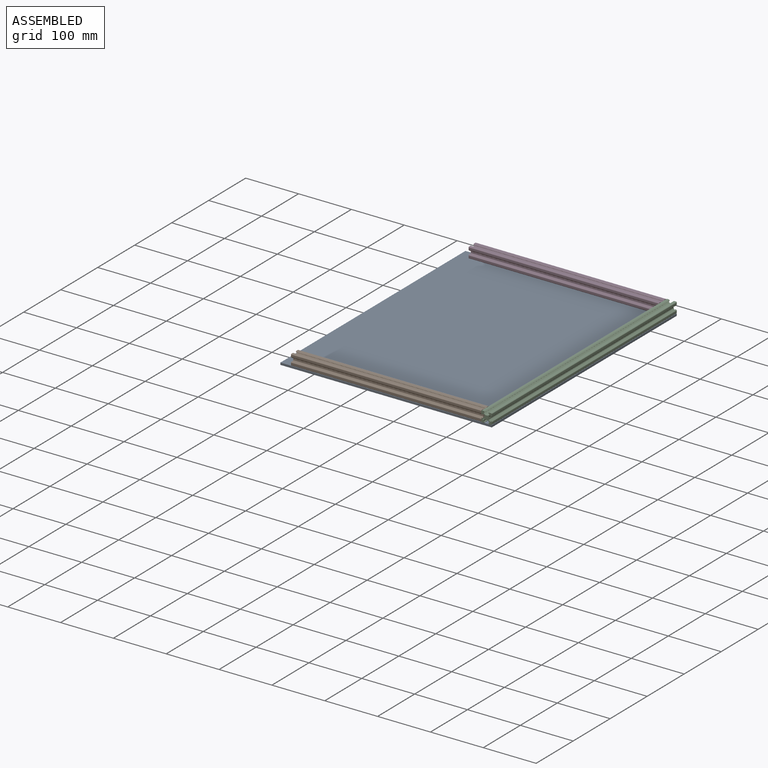
[diagram: assembled view]
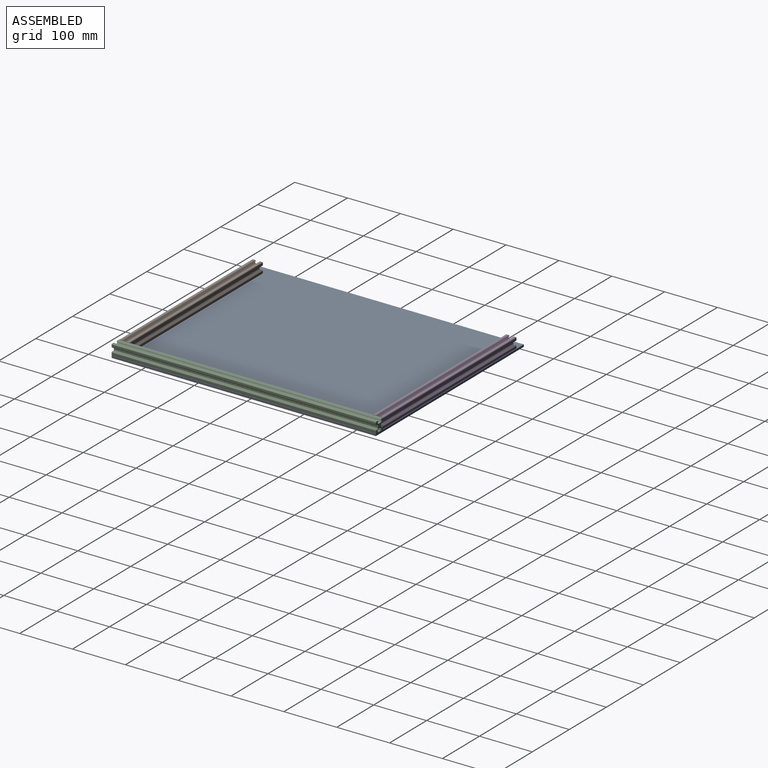
[diagram: assembled view, second angle]
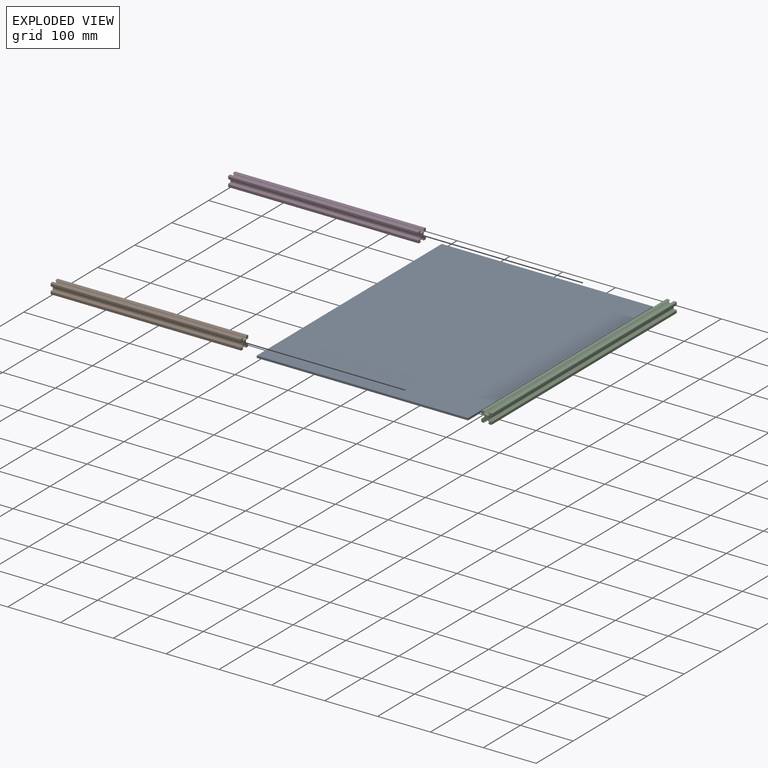
[diagram: exploded view]
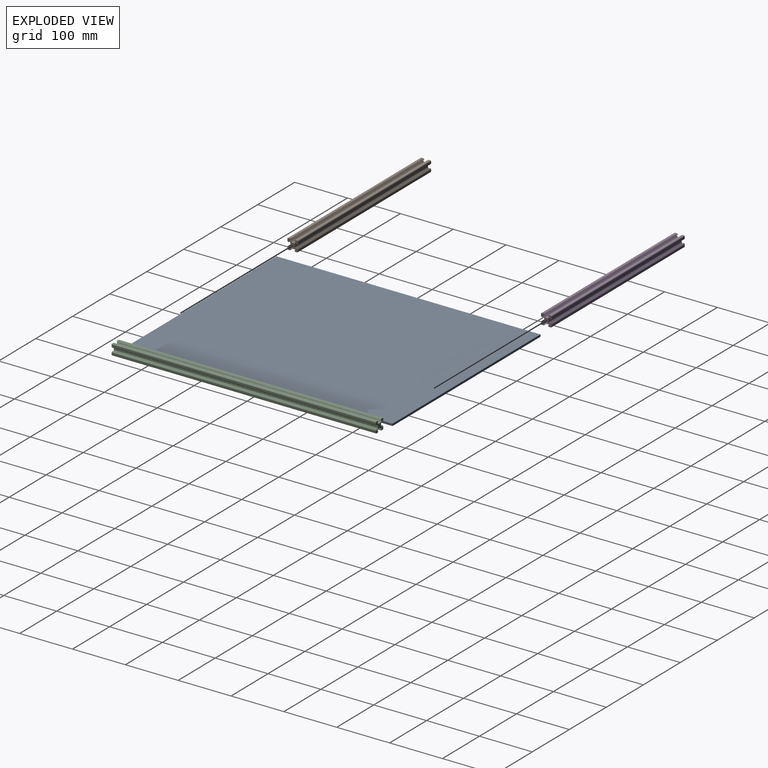
[diagram: exploded view, second angle]
ASSEMBLY  parts=4 mates=2
PART A: 6 faces, bbox 400x500x4 mm
  f0: plane 500x4mm, normal (-1,0,0), area 2000mm2, adj f1,f3,f4,f5
  f1: plane 400x4mm, normal (0,-1,0), area 1600mm2, adj f0,f2,f4,f5
  f2: plane 500x4mm, normal (1,0,0), area 2000mm2, adj f1,f3,f4,f5
  f3: plane 400x4mm, normal (0,1,0), area 1600mm2, adj f0,f2,f4,f5
  f4: plane 500x400mm, normal (0,0,1), area 200000mm2, adj f0,f1,f2,f3
  f5: plane 500x400mm, normal (0,0,-1), area 200000mm2, adj f0,f1,f2,f3
PART B: 110 faces, bbox 360x20x20 mm
  f0: plane 360x3.67mm, normal (0,-1,0), area 1321.2mm2, adj f1,f107,f108,f109
  f1: extruded ~360x0.18mm, area 70.6mm2, adj f0,f2,f108,f109
  f2: plane 360x1.5mm, normal (0,-0.71,-0.71), area 763.7mm2, adj f1,f3,f108,f109
  f3: extruded ~360x0.43mm, area 212mm2, adj f2,f4,f108,f109
  f4: plane 360x1.77mm, normal (0,1,0), area 637.3mm2, adj f3,f5,f108,f109
  f5: extruded ~360x0.2mm, area 113mm2, adj f4,f6,f108,f109
  f6: plane 360x0.81mm, normal (0,0,-1), area 292.7mm2, adj f5,f7,f108,f109
  f7: extruded ~360x0.71mm, area 282.7mm2, adj f6,f8,f108,f109
  f8: plane 360x1.69mm, normal (0,-0.71,-0.71), area 862.5mm2, adj f7,f9,f108,f109
  f9: extruded ~360x1.41mm, area 565.4mm2, adj f8,f10,f108,f109
  f10: plane 360x1.56mm, normal (0,-1,0), area 562mm2, adj f9,f11,f108,f109
  f11: extruded ~360x0.16mm, area 60.7mm2, adj f10,f12,f108,f109
  f12: plane 360x0.18mm, normal (0,-0.78,-0.62), area 83.7mm2, adj f11,f13,f108,f109
  f13: plane 360x0.18mm, normal (0,-0.78,0.62), area 83.7mm2, adj f12,f14,f108,f109
  f14: extruded ~360x0.16mm, area 60.7mm2, adj f13,f15,f108,f109
  f15: plane 360x1.56mm, normal (0,-1,0), area 562mm2, adj f14,f16,f108,f109
  f16: extruded ~360x1.41mm, area 565.4mm2, adj f15,f17,f108,f109
  f17: plane 360x1.69mm, normal (0,-0.71,0.71), area 862.5mm2, adj f16,f18,f108,f109
  f18: extruded ~360x0.71mm, area 282.7mm2, adj f17,f19,f108,f109
  f19: plane 360x0.81mm, normal (0,0,1), area 292.7mm2, adj f18,f20,f108,f109
  f20: extruded ~360x0.2mm, area 113mm2, adj f19,f21,f108,f109
  f21: plane 360x1.77mm, normal (0,1,0), area 637.2mm2, adj f20,f22,f108,f109
  f22: extruded ~360x0.43mm, area 212mm2, adj f21,f23,f108,f109
  f23: plane 360x1.5mm, normal (0,-0.71,0.71), area 763.7mm2, adj f22,f24,f108,f109
  f24: extruded ~360x0.18mm, area 70.7mm2, adj f23,f25,f108,f109
  f25: plane 360x3.67mm, normal (0,-1,0), area 1321.2mm2, adj f24,f26,f108,f109
  f26: extruded ~360x1.5mm, area 848.3mm2, adj f25,f27,f108,f109
  f27: plane 360x3.67mm, normal (0,0,-1), area 1321.2mm2, adj f26,f28,f108,f109
  f28: extruded ~360x0.18mm, area 70.6mm2, adj f27,f29,f108,f109
  f29: plane 360x1.5mm, normal (0,0.71,-0.71), area 763.7mm2, adj f28,f30,f108,f109
  f30: extruded ~360x0.43mm, area 212mm2, adj f29,f31,f108,f109
  f31: plane 360x1.77mm, normal (0,0,1), area 637.3mm2, adj f30,f32,f108,f109
  f32: extruded ~360x0.2mm, area 113mm2, adj f31,f33,f108,f109
  f33: plane 360x0.81mm, normal (0,1,0), area 292.7mm2, adj f32,f34,f108,f109
  f34: extruded ~360x0.71mm, area 282.7mm2, adj f33,f35,f108,f109
  f35: plane 360x1.69mm, normal (0,0.71,-0.71), area 862.5mm2, adj f34,f36,f108,f109
  f36: extruded ~360x1.41mm, area 565.4mm2, adj f35,f37,f108,f109
  f37: plane 360x1.56mm, normal (0,0,-1), area 562mm2, adj f36,f38,f108,f109
  f38: extruded ~360x0.16mm, area 60.7mm2, adj f37,f39,f108,f109
  f39: plane 360x0.18mm, normal (0,0.62,-0.78), area 83.7mm2, adj f38,f40,f108,f109
  f40: plane 360x0.18mm, normal (0,-0.62,-0.78), area 83.7mm2, adj f39,f41,f108,f109
  f41: extruded ~360x0.16mm, area 60.7mm2, adj f40,f42,f108,f109
  f42: plane 360x1.56mm, normal (0,0,-1), area 562mm2, adj f41,f43,f108,f109
  f43: extruded ~360x1.41mm, area 565.4mm2, adj f42,f44,f108,f109
  f44: plane 360x1.69mm, normal (0,-0.71,-0.71), area 862.5mm2, adj f43,f45,f108,f109
  f45: extruded ~360x0.71mm, area 282.7mm2, adj f44,f46,f108,f109
  f46: plane 360x0.81mm, normal (0,-1,0), area 292.7mm2, adj f45,f47,f108,f109
  f47: extruded ~360x0.2mm, area 113mm2, adj f46,f48,f108,f109
  f48: plane 360x1.77mm, normal (0,0,1), area 637.2mm2, adj f47,f49,f108,f109
  f49: extruded ~360x0.43mm, area 212.1mm2, adj f48,f50,f108,f109
  f50: plane 360x1.5mm, normal (0,-0.71,-0.71), area 763.7mm2, adj f49,f51,f108,f109
  f51: extruded ~360x0.18mm, area 70.7mm2, adj f50,f52,f108,f109
  f52: plane 360x3.67mm, normal (0,0,-1), area 1321.2mm2, adj f51,f53,f108,f109
  f53: extruded ~360x1.5mm, area 848.3mm2, adj f52,f54,f108,f109
  f54: plane 360x3.67mm, normal (0,1,0), area 1321.2mm2, adj f53,f55,f108,f109
  f55: extruded ~360x0.18mm, area 70.6mm2, adj f54,f56,f108,f109
  f56: plane 360x1.5mm, normal (0,0.71,0.71), area 763.7mm2, adj f55,f57,f108,f109
  f57: extruded ~360x0.43mm, area 212mm2, adj f56,f58,f108,f109
  f58: plane 360x1.77mm, normal (0,-1,0), area 637.3mm2, adj f57,f59,f108,f109
  f59: extruded ~360x0.2mm, area 113mm2, adj f58,f60,f108,f109
  f60: plane 360x0.81mm, normal (0,0,1), area 292.7mm2, adj f59,f61,f108,f109
  f61: extruded ~360x0.71mm, area 282.7mm2, adj f60,f62,f108,f109
  f62: plane 360x1.69mm, normal (0,0.71,0.71), area 862.5mm2, adj f61,f63,f108,f109
  f63: extruded ~360x1.41mm, area 565.4mm2, adj f62,f64,f108,f109
  f64: plane 360x1.56mm, normal (0,1,0), area 562mm2, adj f63,f65,f108,f109
  f65: extruded ~360x0.16mm, area 60.7mm2, adj f64,f66,f108,f109
  f66: plane 360x0.18mm, normal (0,0.78,0.62), area 83.7mm2, adj f65,f67,f108,f109
  f67: plane 360x0.18mm, normal (0,0.78,-0.62), area 83.7mm2, adj f66,f68,f108,f109
  f68: extruded ~360x0.16mm, area 60.7mm2, adj f67,f69,f108,f109
  f69: plane 360x1.56mm, normal (0,1,0), area 562mm2, adj f68,f70,f108,f109
  f70: extruded ~360x1.41mm, area 565.4mm2, adj f69,f71,f108,f109
  f71: plane 360x1.69mm, normal (0,0.71,-0.71), area 862.5mm2, adj f70,f72,f108,f109
  f72: extruded ~360x0.71mm, area 282.7mm2, adj f71,f73,f108,f109
  f73: plane 360x0.81mm, normal (0,0,-1), area 292.7mm2, adj f72,f74,f108,f109
  f74: extruded ~360x0.2mm, area 113.1mm2, adj f73,f75,f108,f109
  f75: plane 360x1.77mm, normal (0,-1,0), area 637.2mm2, adj f74,f76,f108,f109
  f76: extruded ~360x0.43mm, area 212.1mm2, adj f75,f77,f108,f109
  f77: plane 360x1.5mm, normal (0,0.71,-0.71), area 763.7mm2, adj f76,f78,f108,f109
  f78: extruded ~360x0.18mm, area 70.7mm2, adj f77,f79,f108,f109
  f79: plane 360x3.67mm, normal (0,1,0), area 1321.2mm2, adj f78,f80,f108,f109
  f80: extruded ~360x1.5mm, area 848.3mm2, adj f79,f81,f108,f109
  f81: plane 360x3.67mm, normal (0,0,1), area 1321.2mm2, adj f80,f82,f108,f109
  f82: extruded ~360x0.18mm, area 70.7mm2, adj f81,f83,f108,f109
  f83: plane 360x1.5mm, normal (0,-0.71,0.71), area 763.7mm2, adj f82,f84,f108,f109
  f84: extruded ~360x0.43mm, area 212mm2, adj f83,f85,f108,f109
  f85: plane 360x1.77mm, normal (0,0,-1), area 637.3mm2, adj f84,f86,f108,f109
  f86: extruded ~360x0.2mm, area 113mm2, adj f85,f87,f108,f109
  f87: plane 360x0.81mm, normal (0,-1,0), area 292.7mm2, adj f86,f88,f108,f109
  f88: extruded ~360x0.71mm, area 282.7mm2, adj f87,f89,f108,f109
  f89: plane 360x1.69mm, normal (0,-0.71,0.71), area 862.5mm2, adj f88,f90,f108,f109
  f90: extruded ~360x1.41mm, area 565.4mm2, adj f89,f91,f108,f109
  f91: plane 360x1.56mm, normal (0,0,1), area 562mm2, adj f90,f92,f108,f109
  f92: extruded ~360x0.16mm, area 60.7mm2, adj f91,f93,f108,f109
  f93: plane 360x0.18mm, normal (0,-0.62,0.78), area 83.7mm2, adj f92,f94,f108,f109
  f94: plane 360x0.18mm, normal (0,0.62,0.78), area 83.7mm2, adj f93,f95,f108,f109
  f95: extruded ~360x0.16mm, area 60.7mm2, adj f94,f96,f108,f109
  f96: plane 360x1.56mm, normal (0,0,1), area 562mm2, adj f95,f97,f108,f109
  f97: extruded ~360x1.41mm, area 565.4mm2, adj f96,f98,f108,f109
  f98: plane 360x1.69mm, normal (0,0.71,0.71), area 862.5mm2, adj f97,f99,f108,f109
  f99: extruded ~360x0.71mm, area 282.7mm2, adj f98,f100,f108,f109
  f100: plane 360x0.81mm, normal (0,1,0), area 292.7mm2, adj f99,f101,f108,f109
  f101: extruded ~360x0.2mm, area 113.1mm2, adj f100,f102,f108,f109
  f102: plane 360x1.77mm, normal (0,0,-1), area 637.2mm2, adj f101,f103,f108,f109
  f103: extruded ~360x0.43mm, area 212.1mm2, adj f102,f104,f108,f109
  f104: plane 360x1.5mm, normal (0,0.71,0.71), area 763.7mm2, adj f103,f105,f108,f109
  f105: extruded ~360x0.18mm, area 70.7mm2, adj f104,f106,f108,f109
  f106: plane 360x3.67mm, normal (0,0,1), area 1321.2mm2, adj f105,f107,f108,f109
  f107: extruded ~360x1.5mm, area 848.3mm2, adj f0,f106,f108,f109
  f108: plane 20x20mm, normal (1,0,0), area 195.4mm2, adj f0,f1,f2,f3,f4,f5,f6,f7
  f109: plane 20x20mm, normal (-1,0,0), area 195.4mm2, adj f0,f1,f2,f3,f4,f5,f6,f7
PART C: 110 faces, bbox 20x500x20 mm
  f0: plane 500x3.67mm, normal (-1,0,0), area 1835mm2, adj f1,f107,f108,f109
  f1: extruded ~500x0.18mm, area 98.1mm2, adj f0,f2,f108,f109
  f2: plane 500x1.5mm, normal (-0.71,0,-0.71), area 1060.7mm2, adj f1,f3,f108,f109
  f3: extruded ~500x0.43mm, area 294.5mm2, adj f2,f4,f108,f109
  f4: plane 500x1.77mm, normal (1,0,0), area 885.1mm2, adj f3,f5,f108,f109
  f5: extruded ~500x0.2mm, area 156.9mm2, adj f4,f6,f108,f109
  f6: plane 500x0.81mm, normal (0,0,-1), area 406.5mm2, adj f5,f7,f108,f109
  f7: extruded ~500x0.71mm, area 392.6mm2, adj f6,f8,f108,f109
  f8: plane 500x1.69mm, normal (-0.71,0,-0.71), area 1197.9mm2, adj f7,f9,f108,f109
  f9: extruded ~500x1.41mm, area 785.3mm2, adj f8,f10,f108,f109
  f10: plane 500x1.56mm, normal (-1,0,0), area 780.6mm2, adj f9,f11,f108,f109
  f11: extruded ~500x0.16mm, area 84.3mm2, adj f10,f12,f108,f109
  f12: plane 500x0.18mm, normal (-0.78,0,-0.62), area 116.2mm2, adj f11,f13,f108,f109
  f13: plane 500x0.18mm, normal (-0.78,0,0.62), area 116.2mm2, adj f12,f14,f108,f109
  f14: extruded ~500x0.16mm, area 84.3mm2, adj f13,f15,f108,f109
  f15: plane 500x1.56mm, normal (-1,0,0), area 780.5mm2, adj f14,f16,f108,f109
  f16: extruded ~500x1.41mm, area 785.3mm2, adj f15,f17,f108,f109
  f17: plane 500x1.69mm, normal (-0.71,0,0.71), area 1197.9mm2, adj f16,f18,f108,f109
  f18: extruded ~500x0.71mm, area 392.6mm2, adj f17,f19,f108,f109
  f19: plane 500x0.81mm, normal (0,0,1), area 406.5mm2, adj f18,f20,f108,f109
  f20: extruded ~500x0.2mm, area 157mm2, adj f19,f21,f108,f109
  f21: plane 500x1.77mm, normal (1,0,0), area 885mm2, adj f20,f22,f108,f109
  f22: extruded ~500x0.43mm, area 294.5mm2, adj f21,f23,f108,f109
  f23: plane 500x1.5mm, normal (-0.71,0,0.71), area 1060.7mm2, adj f22,f24,f108,f109
  f24: extruded ~500x0.18mm, area 98.1mm2, adj f23,f25,f108,f109
  f25: plane 500x3.67mm, normal (-1,0,0), area 1835mm2, adj f24,f26,f108,f109
  f26: extruded ~500x1.5mm, area 1178.1mm2, adj f25,f27,f108,f109
  f27: plane 500x3.67mm, normal (0,0,-1), area 1835mm2, adj f26,f28,f108,f109
  f28: extruded ~500x0.18mm, area 98.1mm2, adj f27,f29,f108,f109
  f29: plane 500x1.5mm, normal (0.71,0,-0.71), area 1060.7mm2, adj f28,f30,f108,f109
  f30: extruded ~500x0.43mm, area 294.5mm2, adj f29,f31,f108,f109
  f31: plane 500x1.77mm, normal (0,0,1), area 885.1mm2, adj f30,f32,f108,f109
  f32: extruded ~500x0.2mm, area 156.9mm2, adj f31,f33,f108,f109
  f33: plane 500x0.81mm, normal (1,0,0), area 406.5mm2, adj f32,f34,f108,f109
  f34: extruded ~500x0.71mm, area 392.6mm2, adj f33,f35,f108,f109
  f35: plane 500x1.69mm, normal (0.71,0,-0.71), area 1197.9mm2, adj f34,f36,f108,f109
  f36: extruded ~500x1.41mm, area 785.3mm2, adj f35,f37,f108,f109
  f37: plane 500x1.56mm, normal (0,0,-1), area 780.6mm2, adj f36,f38,f108,f109
  f38: extruded ~500x0.16mm, area 84.3mm2, adj f37,f39,f108,f109
  f39: plane 500x0.18mm, normal (0.62,0,-0.78), area 116.2mm2, adj f38,f40,f108,f109
  f40: plane 500x0.18mm, normal (-0.62,0,-0.78), area 116.2mm2, adj f39,f41,f108,f109
  f41: extruded ~500x0.16mm, area 84.3mm2, adj f40,f42,f108,f109
  f42: plane 500x1.56mm, normal (0,0,-1), area 780.5mm2, adj f41,f43,f108,f109
  f43: extruded ~500x1.41mm, area 785.3mm2, adj f42,f44,f108,f109
  f44: plane 500x1.69mm, normal (-0.71,0,-0.71), area 1197.9mm2, adj f43,f45,f108,f109
  f45: extruded ~500x0.71mm, area 392.6mm2, adj f44,f46,f108,f109
  f46: plane 500x0.81mm, normal (-1,0,0), area 406.5mm2, adj f45,f47,f108,f109
  f47: extruded ~500x0.2mm, area 157mm2, adj f46,f48,f108,f109
  f48: plane 500x1.77mm, normal (0,0,1), area 885mm2, adj f47,f49,f108,f109
  f49: extruded ~500x0.43mm, area 294.5mm2, adj f48,f50,f108,f109
  f50: plane 500x1.5mm, normal (-0.71,0,-0.71), area 1060.7mm2, adj f49,f51,f108,f109
  f51: extruded ~500x0.18mm, area 98.2mm2, adj f50,f52,f108,f109
  f52: plane 500x3.67mm, normal (0,0,-1), area 1835mm2, adj f51,f53,f108,f109
  f53: extruded ~500x1.5mm, area 1178.2mm2, adj f52,f54,f108,f109
  f54: plane 500x3.67mm, normal (1,0,0), area 1835mm2, adj f53,f55,f108,f109
  f55: extruded ~500x0.18mm, area 98.1mm2, adj f54,f56,f108,f109
  f56: plane 500x1.5mm, normal (0.71,0,0.71), area 1060.7mm2, adj f55,f57,f108,f109
  f57: extruded ~500x0.43mm, area 294.5mm2, adj f56,f58,f108,f109
  f58: plane 500x1.77mm, normal (-1,0,0), area 885.1mm2, adj f57,f59,f108,f109
  f59: extruded ~500x0.2mm, area 157mm2, adj f58,f60,f108,f109
  f60: plane 500x0.81mm, normal (0,0,1), area 406.5mm2, adj f59,f61,f108,f109
  f61: extruded ~500x0.71mm, area 392.6mm2, adj f60,f62,f108,f109
  f62: plane 500x1.69mm, normal (0.71,0,0.71), area 1197.9mm2, adj f61,f63,f108,f109
  f63: extruded ~500x1.41mm, area 785.3mm2, adj f62,f64,f108,f109
  f64: plane 500x1.56mm, normal (1,0,0), area 780.6mm2, adj f63,f65,f108,f109
  f65: extruded ~500x0.16mm, area 84.3mm2, adj f64,f66,f108,f109
  f66: plane 500x0.18mm, normal (0.78,0,0.62), area 116.2mm2, adj f65,f67,f108,f109
  f67: plane 500x0.18mm, normal (0.78,0,-0.62), area 116.2mm2, adj f66,f68,f108,f109
  f68: extruded ~500x0.16mm, area 84.3mm2, adj f67,f69,f108,f109
  f69: plane 500x1.56mm, normal (1,0,0), area 780.5mm2, adj f68,f70,f108,f109
  f70: extruded ~500x1.41mm, area 785.3mm2, adj f69,f71,f108,f109
  f71: plane 500x1.69mm, normal (0.71,0,-0.71), area 1197.9mm2, adj f70,f72,f108,f109
  f72: extruded ~500x0.71mm, area 392.6mm2, adj f71,f73,f108,f109
  f73: plane 500x0.81mm, normal (0,0,-1), area 406.5mm2, adj f72,f74,f108,f109
  f74: extruded ~500x0.2mm, area 157mm2, adj f73,f75,f108,f109
  f75: plane 500x1.77mm, normal (-1,0,0), area 885mm2, adj f74,f76,f108,f109
  f76: extruded ~500x0.43mm, area 294.5mm2, adj f75,f77,f108,f109
  f77: plane 500x1.5mm, normal (0.71,0,-0.71), area 1060.7mm2, adj f76,f78,f108,f109
  f78: extruded ~500x0.18mm, area 98.2mm2, adj f77,f79,f108,f109
  f79: plane 500x3.67mm, normal (1,0,0), area 1835mm2, adj f78,f80,f108,f109
  f80: extruded ~500x1.5mm, area 1178.2mm2, adj f79,f81,f108,f109
  f81: plane 500x3.67mm, normal (0,0,1), area 1835mm2, adj f80,f82,f108,f109
  f82: extruded ~500x0.18mm, area 98.1mm2, adj f81,f83,f108,f109
  f83: plane 500x1.5mm, normal (-0.71,0,0.71), area 1060.7mm2, adj f82,f84,f108,f109
  f84: extruded ~500x0.43mm, area 294.5mm2, adj f83,f85,f108,f109
  f85: plane 500x1.77mm, normal (0,0,-1), area 885.1mm2, adj f84,f86,f108,f109
  f86: extruded ~500x0.2mm, area 157mm2, adj f85,f87,f108,f109
  f87: plane 500x0.81mm, normal (-1,0,0), area 406.5mm2, adj f86,f88,f108,f109
  f88: extruded ~500x0.71mm, area 392.6mm2, adj f87,f89,f108,f109
  f89: plane 500x1.69mm, normal (-0.71,0,0.71), area 1197.9mm2, adj f88,f90,f108,f109
  f90: extruded ~500x1.41mm, area 785.3mm2, adj f89,f91,f108,f109
  f91: plane 500x1.56mm, normal (0,0,1), area 780.6mm2, adj f90,f92,f108,f109
  f92: extruded ~500x0.16mm, area 84.3mm2, adj f91,f93,f108,f109
  f93: plane 500x0.18mm, normal (-0.62,0,0.78), area 116.2mm2, adj f92,f94,f108,f109
  f94: plane 500x0.18mm, normal (0.62,0,0.78), area 116.2mm2, adj f93,f95,f108,f109
  f95: extruded ~500x0.16mm, area 84.3mm2, adj f94,f96,f108,f109
  f96: plane 500x1.56mm, normal (0,0,1), area 780.5mm2, adj f95,f97,f108,f109
  f97: extruded ~500x1.41mm, area 785.3mm2, adj f96,f98,f108,f109
  f98: plane 500x1.69mm, normal (0.71,0,0.71), area 1197.9mm2, adj f97,f99,f108,f109
  f99: extruded ~500x0.71mm, area 392.6mm2, adj f98,f100,f108,f109
  f100: plane 500x0.81mm, normal (1,0,0), area 406.5mm2, adj f99,f101,f108,f109
  f101: extruded ~500x0.2mm, area 157mm2, adj f100,f102,f108,f109
  f102: plane 500x1.77mm, normal (0,0,-1), area 885mm2, adj f101,f103,f108,f109
  f103: extruded ~500x0.43mm, area 294.5mm2, adj f102,f104,f108,f109
  f104: plane 500x1.5mm, normal (0.71,0,0.71), area 1060.7mm2, adj f103,f105,f108,f109
  f105: extruded ~500x0.18mm, area 98.2mm2, adj f104,f106,f108,f109
  f106: plane 500x3.67mm, normal (0,0,1), area 1835mm2, adj f105,f107,f108,f109
  f107: extruded ~500x1.5mm, area 1178.2mm2, adj f0,f106,f108,f109
  f108: plane 20x20mm, normal (0,1,0), area 195.4mm2, adj f0,f1,f2,f3,f4,f5,f6,f7
  f109: plane 20x20mm, normal (0,-1,0), area 195.4mm2, adj f0,f1,f2,f3,f4,f5,f6,f7
PART D: same geometry as B
PLACE A t=(-20,-20,-5.5)mm
PLACE B t=(0,-10,8.5)mm
PLACE C t=(370,-20,8.5)mm
PLACE D t=(0,470,8.5)mm
MATE fastened B.f108 <-> C.f25  axis (1,0,0) through (360,-20,0)mm
MATE fastened D.f108 <-> C.f25  axis (1,0,0) through (360,480,0)mm
